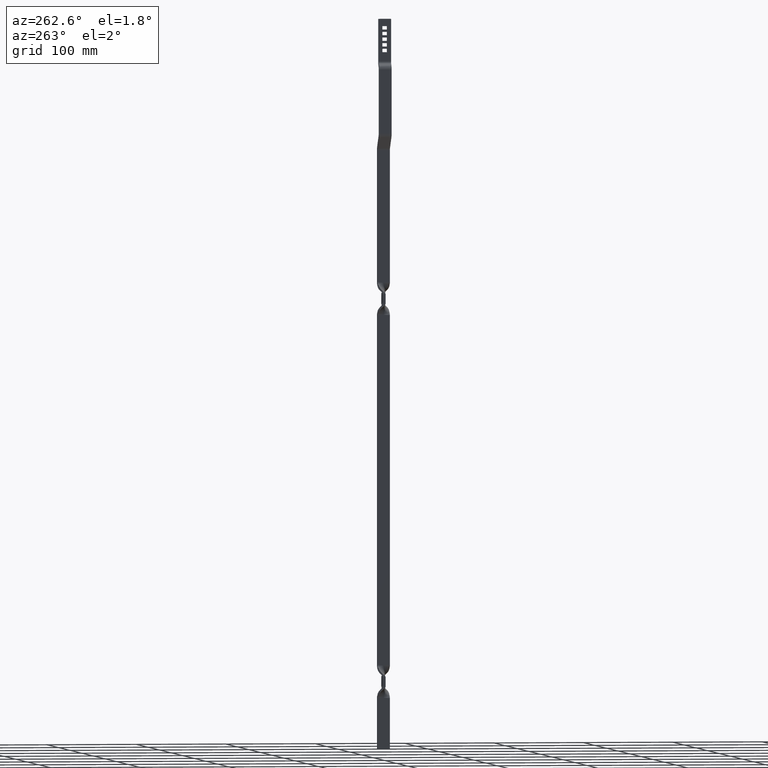
[diagram: clean part render]
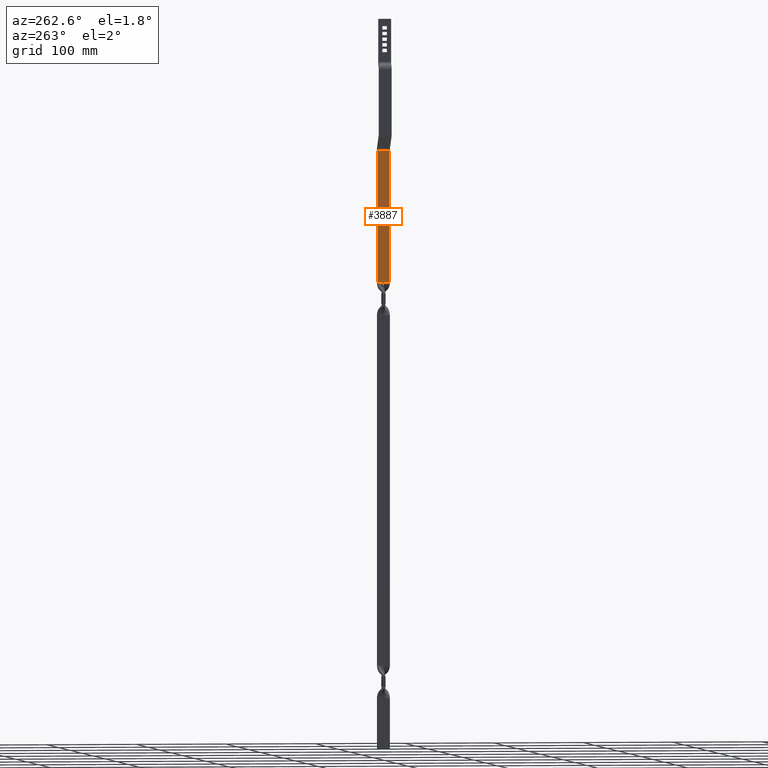
[diagram: same view with one face highlighted and labeled with its STEP entity id]
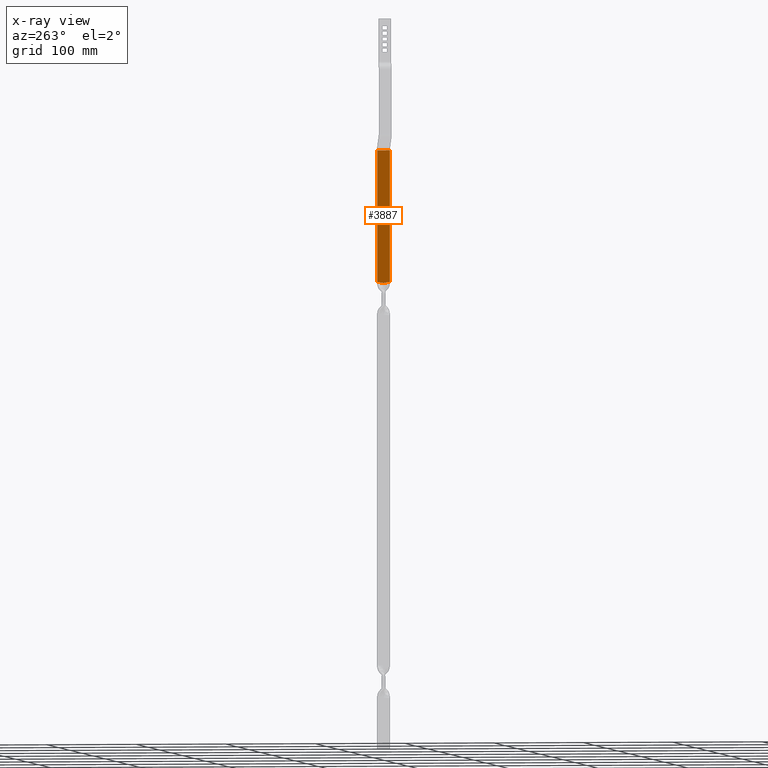
[diagram: x-ray of the same camera — body ghosted, the highlighted face saturated]
A machine part, auxiliary view. The second image highlights one B-rep face of the part: STEP entity #3887.
The next image is the same camera in x-ray: the body ghosted, the highlighted face saturated — about 0% of this face is hidden behind the body in this view.
In plain terms, the highlighted face is a freeform B-spline surface patch.
Its self-contained STEP definition (entity closure, byte-faithful):
#1351=CARTESIAN_POINT('',(10.499999999999559,0.271775746040870,-283.499999999955490));
#1352=VERTEX_POINT('',#1351);
#1376=CARTESIAN_POINT('',(10.499999999999581,7.0,-282.313138851907010));
#1377=VERTEX_POINT('',#1376);
#1378=CARTESIAN_POINT('',(10.499999999999581,7.0,-282.313138851907010));
#1379=CARTESIAN_POINT('',(10.499999999999581,6.434661942369232,-282.383037199499710));
#1380=CARTESIAN_POINT('',(10.499999999999570,5.870317070206208,-282.459521844660170));
#1381=CARTESIAN_POINT('',(10.499999999999570,4.743981124447839,-282.628100322070000));
#1382=CARTESIAN_POINT('',(10.499999999999631,4.182003036503552,-282.720280268508870));
#1383=CARTESIAN_POINT('',(10.499999999999631,3.060551510413389,-282.921249716612410));
#1384=CARTESIAN_POINT('',(10.499999999999581,2.501416190333519,-283.030179166589220));
#1385=CARTESIAN_POINT('',(10.499999999999581,1.385497779343395,-283.259857808714170));
#1386=CARTESIAN_POINT('',(10.499999999999551,0.828539088836233,-283.380513480052630));
#1387=CARTESIAN_POINT('',(10.499999999999559,0.271775746040870,-283.499999999955490));
#1388=B_SPLINE_CURVE_WITH_KNOTS('',3,(#1378,#1379,#1380,#1381,#1382,#1383,#1384,#1385,#1386,#1387),.UNSPECIFIED.,.F.,.U.,(4,2,2,2,4),(0.0,0.250000000000000,0.500000000000000,0.750000000000000,1.0),.UNSPECIFIED.);
#1389=EDGE_CURVE('',#1377,#1352,#1388,.T.);
#1454=CARTESIAN_POINT('',(10.499999999999581,-7.0,-282.289823195477990));
#1455=VERTEX_POINT('',#1454);
#1469=CARTESIAN_POINT('',(10.499999999999559,0.271775746040870,-283.499999999955490));
#1470=CARTESIAN_POINT('',(10.499999999999501,-0.331125423913114,-283.381840460403230));
#1471=CARTESIAN_POINT('',(10.499999999999570,-0.934187228391769,-283.262608892199920));
#1472=CARTESIAN_POINT('',(10.499999999999581,-2.141573673938004,-283.032512668284710));
#1473=CARTESIAN_POINT('',(10.499999999999620,-2.746067614053455,-282.921779648586780));
#1474=CARTESIAN_POINT('',(10.499999999999620,-3.957689163754373,-282.715155313465120));
#1475=CARTESIAN_POINT('',(10.499999999999449,-4.564574697634921,-282.619239176041220));
#1476=CARTESIAN_POINT('',(10.499999999999449,-5.780642736340786,-282.443213668901880));
#1477=CARTESIAN_POINT('',(10.499999999999581,-6.389812878324849,-282.363019223421590));
#1478=CARTESIAN_POINT('',(10.499999999999581,-7.0,-282.289823195477990));
#1479=B_SPLINE_CURVE_WITH_KNOTS('',3,(#1469,#1470,#1471,#1472,#1473,#1474,#1475,#1476,#1477,#1478),.UNSPECIFIED.,.F.,.U.,(4,2,2,2,4),(0.0,0.250000000000000,0.500000000000000,0.750000000000000,1.0),.UNSPECIFIED.);
#1480=EDGE_CURVE('',#1352,#1455,#1479,.T.);
#2179=CARTESIAN_POINT('',(10.500000000000821,-7.0,-136.227922061358410));
#2180=VERTEX_POINT('',#2179);
#2201=CARTESIAN_POINT('',(10.500000000000821,7.0,-136.227922061358410));
#2202=VERTEX_POINT('',#2201);
#2216=CARTESIAN_POINT('',(10.500000000000821,-7.0,-136.227922061358410));
#2217=CARTESIAN_POINT('',(10.500000000000821,7.0,-136.227922061358410));
#2218=QUASI_UNIFORM_CURVE('',1,(#2216,#2217),.UNSPECIFIED.,.F.,.U.);
#2219=EDGE_CURVE('',#2180,#2202,#2218,.T.);
#3683=CARTESIAN_POINT('',(10.500000000000821,7.0,-136.227922061358410));
#3684=CARTESIAN_POINT('',(10.499999999999581,7.0,-282.313138851907010));
#3685=QUASI_UNIFORM_CURVE('',1,(#3683,#3684),.UNSPECIFIED.,.F.,.U.);
#3686=EDGE_CURVE('',#2202,#1377,#3685,.T.);
#3753=CARTESIAN_POINT('',(10.500000000000821,-7.0,-136.227922061358410));
#3754=CARTESIAN_POINT('',(10.499999999999581,-7.0,-282.289823195477990));
#3755=QUASI_UNIFORM_CURVE('',1,(#3753,#3754),.UNSPECIFIED.,.F.,.U.);
#3756=EDGE_CURVE('',#2180,#1455,#3755,.T.);
#3875=CARTESIAN_POINT('',(10.500000000000840,-7.699299972865282,-128.871680671282410));
#3876=CARTESIAN_POINT('',(10.500000000000840,-7.699299972865284,-290.856244023461390));
#3877=CARTESIAN_POINT('',(10.500000000000840,7.699300348374544,-128.871680671282410));
#3878=CARTESIAN_POINT('',(10.500000000000840,7.699300348374545,-290.856244023461390));
#3879=B_SPLINE_SURFACE_WITH_KNOTS('',1,1,((#3875,#3877),(#3876,#3878)),.UNSPECIFIED.,.F.,.F.,.U.,(2,2),(2,2),(0.0,161.984563352179010),(0.0,15.398600321239829),.UNSPECIFIED.);
#3880=ORIENTED_EDGE('',*,*,#3686,.T.);
#3881=ORIENTED_EDGE('',*,*,#1389,.T.);
#3882=ORIENTED_EDGE('',*,*,#1480,.T.);
#3883=ORIENTED_EDGE('',*,*,#3756,.F.);
#3884=ORIENTED_EDGE('',*,*,#2219,.T.);
#3885=EDGE_LOOP('',(#3880,#3881,#3882,#3883,#3884));
#3886=FACE_OUTER_BOUND('',#3885,.T.);
#3887=ADVANCED_FACE('',(#3886),#3879,.F.);